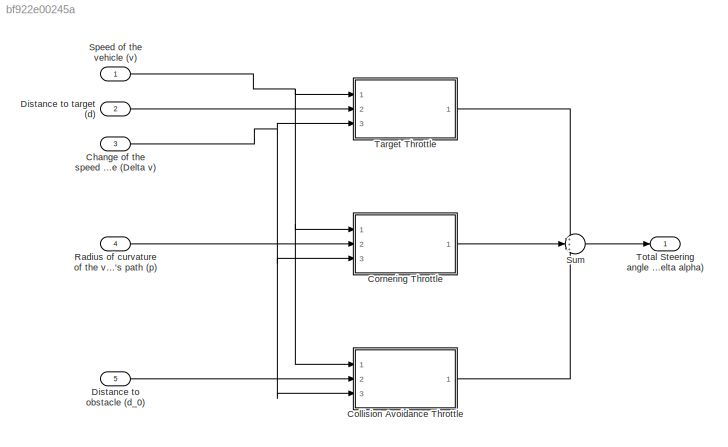
MODEL slx_bf922e00245a
KIND model
CONFIG AbsTol = auto
CONFIG EnableMultiTasking = off
CONFIG FixedStep = auto
CONFIG MaxStep = auto
CONFIG MinStep = auto
CONFIG RelTol = 1e-3
CONFIG SampleTimeConstraint = Unconstrained
CONFIG SolverName = VariableStepAuto
CONFIG StartTime = 0.0
CONFIG StopTime = 10.0
BLOCK [Inport] Change of the speed from the previously measured valcue (Delta v)
  Port = 3
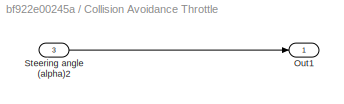
BLOCK [SubSystem] Collision Avoidance Throttle
  Ports = [3, 1]
  RequestExecContextInheritance = off
BLOCK [Outport] Collision Avoidance Throttle/Out1
BLOCK [Inport] Collision Avoidance Throttle/Steering angle (alpha)2
  Port = 3
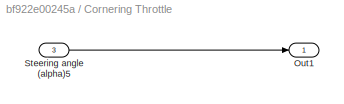
BLOCK [SubSystem] Cornering Throttle
  Ports = [3, 1]
  RequestExecContextInheritance = off
BLOCK [Outport] Cornering Throttle/Out1
BLOCK [Inport] Cornering Throttle/Steering angle (alpha)5
  Port = 3
BLOCK [Inport] Distance to obstacle (d_0)
  Port = 5
BLOCK [Inport] Distance to target (d)
  Port = 2
BLOCK [Inport] Radius of curvature of the vehicle's path (p)
  Port = 4
BLOCK [Inport] Speed of the vehicle (v)
BLOCK [Sum] Sum
  Inputs = +++
  Ports = [3, 1]
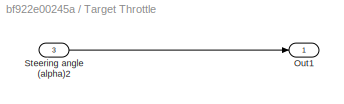
BLOCK [SubSystem] Target Throttle
  Ports = [3, 1]
  RequestExecContextInheritance = off
BLOCK [Outport] Target Throttle/Out1
BLOCK [Inport] Target Throttle/Steering angle (alpha)2
  Port = 3
BLOCK [Outport] Total Steering angle correction (delta alpha)
NET Change of the speed from the previously measured valcue (Delta v):1 -> Collision Avoidance Throttle:3, Cornering Throttle:3, Target Throttle:3
LINE Collision Avoidance Throttle/Steering angle (alpha)2:1 -> Collision Avoidance Throttle/Out1:1
LINE Collision Avoidance Throttle:1 -> Sum:3
LINE Cornering Throttle/Steering angle (alpha)5:1 -> Cornering Throttle/Out1:1
LINE Cornering Throttle:1 -> Sum:2
LINE Distance to obstacle (d_0):1 -> Collision Avoidance Throttle:2
LINE Distance to target (d):1 -> Target Throttle:2
LINE Radius of curvature of the vehicle's path (p):1 -> Cornering Throttle:2
NET Speed of the vehicle (v):1 -> Collision Avoidance Throttle:1, Cornering Throttle:1, Target Throttle:1
LINE Sum:1 -> Total Steering angle correction (delta alpha):1
LINE Target Throttle/Steering angle (alpha)2:1 -> Target Throttle/Out1:1
LINE Target Throttle:1 -> Sum:1
note: NET lines group one-source signal fan-out (src -> all destinations, sorted); 1:1 wires keep LINE
